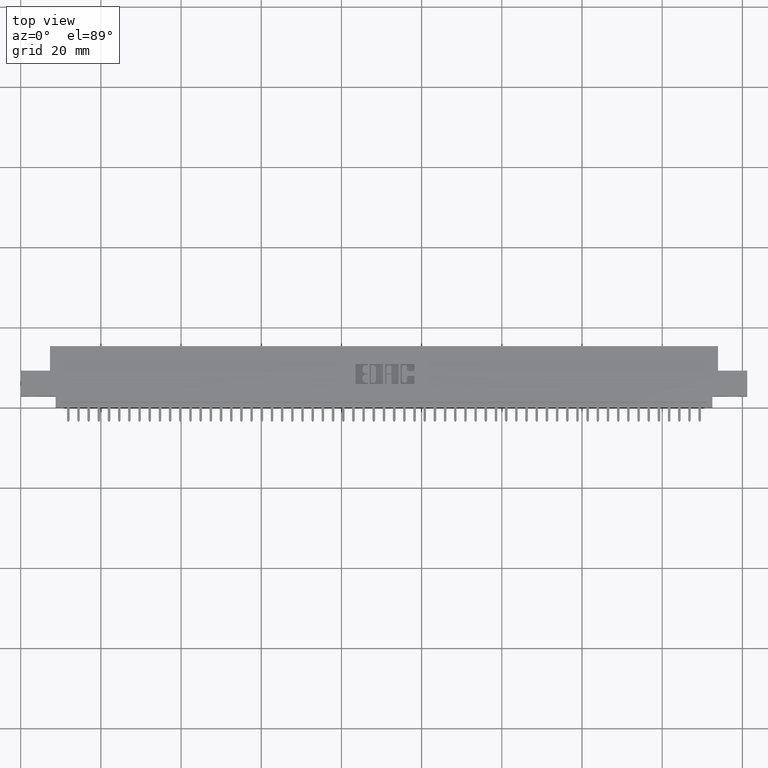
[diagram: clean part render]
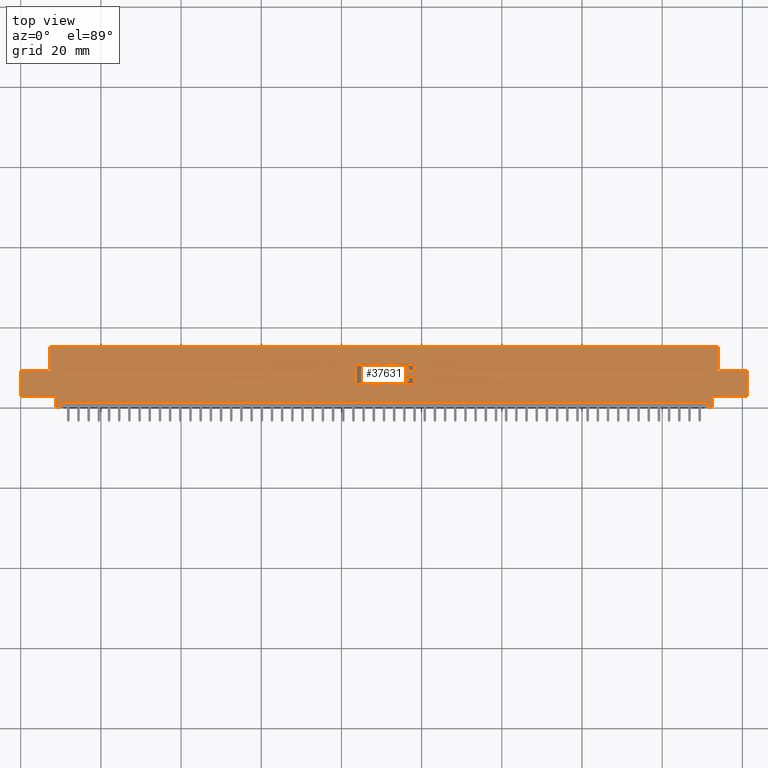
[diagram: same view with one face highlighted and labeled with its STEP entity id]
A machine part, top view. The second image highlights one B-rep face of the part: STEP entity #37631.
In plain terms, the highlighted planar face has unit normal (0, 0, -1).
Its self-contained STEP definition (entity closure, byte-faithful):
#78 = ORIENTED_EDGE ( 'NONE', *, *, #26168, .F. ) ;
#303 = DIRECTION ( 'NONE',  ( -0.0000000000000000000, 0.0000000000000000000, 1.000000000000000000 ) ) ;
#379 = LINE ( 'NONE', #14280, #18829 ) ;
#508 = CARTESIAN_POINT ( 'NONE',  ( 3.355726915352927900, 0.2867188862052000300, 0.0000000000000000000 ) ) ;
#580 = AXIS2_PLACEMENT_3D ( 'NONE', #1879, #27702, #5592 ) ;
#740 = ORIENTED_EDGE ( 'NONE', *, *, #15333, .F. ) ;
#816 = EDGE_CURVE ( 'NONE', #37017, #44814, #24150, .T. ) ;
#828 = CARTESIAN_POINT ( 'NONE',  ( 3.742464321382818600, 0.0000000000000000000, 0.0000000000000000000 ) ) ;
#999 = VERTEX_POINT ( 'NONE', #6831 ) ;
#1085 = DIRECTION ( 'NONE',  ( 0.0000000000000000000, 1.000000000000000000, -0.0000000000000000000 ) ) ;
#1120 = ORIENTED_EDGE ( 'NONE', *, *, #23024, .T. ) ;
#1122 = DIRECTION ( 'NONE',  ( -0.0000000000000000000, 0.0000000000000000000, 1.000000000000000000 ) ) ;
#1175 = CARTESIAN_POINT ( 'NONE',  ( 3.433270709963010000, 0.4133410318342096200, 0.0000000000000000000 ) ) ;
#1268 = VERTEX_POINT ( 'NONE', #4688 ) ;
#1270 = ORIENTED_EDGE ( 'NONE', *, *, #7730, .F. ) ;
#1279 = AXIS2_PLACEMENT_3D ( 'NONE', #11353, #37252, #15067 ) ;
#1352 = ORIENTED_EDGE ( 'NONE', *, *, #5031, .F. ) ;
#1365 = DIRECTION ( 'NONE',  ( -0.0000000000000000000, 0.0000000000000000000, 1.000000000000000000 ) ) ;
#1401 = ORIENTED_EDGE ( 'NONE', *, *, #8856, .F. ) ;
#1531 = ORIENTED_EDGE ( 'NONE', *, *, #31079, .T. ) ;
#1541 = CARTESIAN_POINT ( 'NONE',  ( 3.549095618367861700, 0.2366589681657894100, 0.0000000000000000000 ) ) ;
#1620 = VECTOR ( 'NONE', #34888, 39.37007874015748100 ) ;
#1682 = DIRECTION ( 'NONE',  ( -0.0000000000000000000, 0.0000000000000000000, 1.000000000000000000 ) ) ;
#1726 = ORIENTED_EDGE ( 'NONE', *, *, #19545, .F. ) ;
#1814 = DIRECTION ( 'NONE',  ( 1.000000000000000000, 0.0000000000000000000, 0.0000000000000000000 ) ) ;
#1876 = ORIENTED_EDGE ( 'NONE', *, *, #5296, .F. ) ;
#1879 = CARTESIAN_POINT ( 'NONE',  ( 3.400633606535351300, 0.4162857328953857300, 0.0000000000000000000 ) ) ;
#1980 = CARTESIAN_POINT ( 'NONE',  ( 3.711544960240806400, 0.4133410318342004600, 0.0000000000000000000 ) ) ;
#2086 = LINE ( 'NONE', #19592, #40266 ) ;
#2094 = LINE ( 'NONE', #11297, #20527 ) ;
#2187 = CARTESIAN_POINT ( 'NONE',  ( 3.407504575677997600, 0.2337142671046474100, 0.0000000000000000000 ) ) ;
#2379 = CARTESIAN_POINT ( 'NONE',  ( 3.387137060005125400, 0.4094147637527351700, 0.0000000000000000000 ) ) ;
#2498 = VERTEX_POINT ( 'NONE', #37237 ) ;
#2784 = LINE ( 'NONE', #42188, #1620 ) ;
#2856 = LINE ( 'NONE', #30662, #41044 ) ;
#3058 = CARTESIAN_POINT ( 'NONE',  ( 3.355726915352927900, 0.2719953808994898800, 0.0000000000000000000 ) ) ;
#3076 = CARTESIAN_POINT ( 'NONE',  ( 3.558911288571669400, 0.2366589681657894100, 0.0000000000000000000 ) ) ;
#3112 = DIRECTION ( 'NONE',  ( 1.000000000000000000, 0.0000000000000000000, 0.0000000000000000000 ) ) ;
#3125 = CARTESIAN_POINT ( 'NONE',  ( 3.558911288571669400, 0.0000000000000000000, 0.0000000000000000000 ) ) ;
#3250 = VERTEX_POINT ( 'NONE', #47776 ) ;
#3347 = EDGE_CURVE ( 'NONE', #20596, #3250, #2094, .T. ) ;
#3379 = CARTESIAN_POINT ( 'NONE',  ( 3.854362961706133900, 0.2366589681657894100, 0.0000000000000000000 ) ) ;
#3430 = AXIS2_PLACEMENT_3D ( 'NONE', #23197, #1122, #26937 ) ;
#3483 = VECTOR ( 'NONE', #28269, 39.37007874015748100 ) ;
#3644 = VERTEX_POINT ( 'NONE', #9032 ) ;
#3683 = ORIENTED_EDGE ( 'NONE', *, *, #20784, .F. ) ;
#3734 = ORIENTED_EDGE ( 'NONE', *, *, #43215, .F. ) ;
#3854 = DIRECTION ( 'NONE',  ( -0.0000000000000000000, 0.0000000000000000000, 1.000000000000000000 ) ) ;
#3928 = VERTEX_POINT ( 'NONE', #6774 ) ;
#3977 = EDGE_CURVE ( 'NONE', #10655, #47334, #15869, .T. ) ;
#3991 = AXIS2_PLACEMENT_3D ( 'NONE', #1175, #26988, #4890 ) ;
#4099 = CARTESIAN_POINT ( 'NONE',  ( 3.864178631909940300, 0.2965345564089699200, 0.0000000000000000000 ) ) ;
#4191 = ORIENTED_EDGE ( 'NONE', *, *, #27863, .F. ) ;
#4297 = CARTESIAN_POINT ( 'NONE',  ( 3.599646319917450200, 0.3083133606535450300, 0.0000000000000000000 ) ) ;
#4463 = CARTESIAN_POINT ( 'NONE',  ( 7.135000000000000700, 0.1100000000000000000, 8.737854911916364900E-016 ) ) ;
#4523 = CIRCLE ( 'NONE', #15769, 0.009815670203805798900 ) ;
#4543 = DIRECTION ( 'NONE',  ( -0.0000000000000000000, 0.0000000000000000000, 1.000000000000000000 ) ) ;
#4564 = EDGE_CURVE ( 'NONE', #15392, #42850, #47139, .T. ) ;
#4606 = VERTEX_POINT ( 'NONE', #40007 ) ;
#4615 = VERTEX_POINT ( 'NONE', #25249 ) ;
#4641 = LINE ( 'NONE', #6166, #3483 ) ;
#4668 = VERTEX_POINT ( 'NONE', #21847 ) ;
#4688 = CARTESIAN_POINT ( 'NONE',  ( 3.642344485303985000, 0.3083133606535429200, 0.0000000000000000000 ) ) ;
#4709 = EDGE_LOOP ( 'NONE', ( #6003, #7174, #30288, #31470, #37255, #39573, #1401, #21010, #3734, #23325, #24489, #35549, #7223, #21609, #15284, #44857 ) ) ;
#4806 = VECTOR ( 'NONE', #36114, 39.37007874015748100 ) ;
#4812 = VERTEX_POINT ( 'NONE', #4099 ) ;
#4826 = EDGE_CURVE ( 'NONE', #41075, #42758, #25624, .T. ) ;
#4890 = DIRECTION ( 'NONE',  ( 1.000000000000000000, 0.0000000000000000000, 0.0000000000000000000 ) ) ;
#4942 = EDGE_CURVE ( 'NONE', #18005, #45424, #29686, .T. ) ;
#4972 = VERTEX_POINT ( 'NONE', #45804 ) ;
#5031 = EDGE_CURVE ( 'NONE', #45140, #15392, #16329, .T. ) ;
#5159 = DIRECTION ( 'NONE',  ( -1.000000000000000000, 0.0000000000000000000, 0.0000000000000000000 ) ) ;
#5245 = AXIS2_PLACEMENT_3D ( 'NONE', #28583, #6465, #32313 ) ;
#5265 = DIRECTION ( 'NONE',  ( 1.000000000000000000, 0.0000000000000000000, 0.0000000000000000000 ) ) ;
#5296 = EDGE_CURVE ( 'NONE', #44254, #22761, #25575, .T. ) ;
#5352 = CARTESIAN_POINT ( 'NONE',  ( 3.423455039759169000, 0.0000000000000000000, 0.0000000000000000000 ) ) ;
#5466 = CARTESIAN_POINT ( 'NONE',  ( 0.0000000000000000000, 0.1100000000000000000, 0.0000000000000000000 ) ) ;
#5582 = EDGE_CURVE ( 'NONE', #40475, #29562, #23776, .T. ) ;
#5592 = DIRECTION ( 'NONE',  ( 1.000000000000000000, 0.0000000000000000000, 0.0000000000000000000 ) ) ;
#5723 = LINE ( 'NONE', #10793, #22998 ) ;
#5750 = FACE_BOUND ( 'NONE', #29840, .T. ) ;
#5784 = VERTEX_POINT ( 'NONE', #28063 ) ;
#5805 = VERTEX_POINT ( 'NONE', #6116 ) ;
#5819 = VERTEX_POINT ( 'NONE', #28379 ) ;
#5843 = DIRECTION ( 'NONE',  ( -0.0000000000000000000, -1.000000000000000000, -0.0000000000000000000 ) ) ;
#5890 = ORIENTED_EDGE ( 'NONE', *, *, #6672, .F. ) ;
#5974 = LINE ( 'NONE', #46993, #4806 ) ;
#5976 = CARTESIAN_POINT ( 'NONE',  ( 3.864178631909972200, 0.4133410318341942900, 0.0000000000000000000 ) ) ;
#5977 = AXIS2_PLACEMENT_3D ( 'NONE', #15920, #41841, #19602 ) ;
#6003 = ORIENTED_EDGE ( 'NONE', *, *, #23820, .T. ) ;
#6024 = DIRECTION ( 'NONE',  ( -1.000000000000000000, -0.0000000000000000000, -0.0000000000000000000 ) ) ;
#6048 = AXIS2_PLACEMENT_3D ( 'NONE', #35389, #13196, #39093 ) ;
#6071 = CARTESIAN_POINT ( 'NONE',  ( 3.585904381632127400, 0.4231567020380060400, 0.0000000000000000000 ) ) ;
#6116 = CARTESIAN_POINT ( 'NONE',  ( 6.742500000000000600, 0.0000000000000000000, 0.0000000000000000000 ) ) ;
#6131 = DIRECTION ( 'NONE',  ( -0.0000000000000000000, 0.0000000000000000000, 1.000000000000000000 ) ) ;
#6156 = VERTEX_POINT ( 'NONE', #34529 ) ;
#6166 = CARTESIAN_POINT ( 'NONE',  ( 7.135000000000000700, 0.3599999999999999900, 0.0000000000000000000 ) ) ;
#6292 = CARTESIAN_POINT ( 'NONE',  ( 3.286526440416115400, 0.0000000000000000000, 0.0000000000000000000 ) ) ;
#6320 = EDGE_CURVE ( 'NONE', #38957, #4606, #21470, .T. ) ;
#6322 = VERTEX_POINT ( 'NONE', #14982 ) ;
#6386 = CARTESIAN_POINT ( 'NONE',  ( 3.742464321382818600, 0.2668421540424524800, 0.0000000000000000000 ) ) ;
#6421 = CARTESIAN_POINT ( 'NONE',  ( 3.387137060005084100, 0.3318709691426833300, 0.0000000000000000000 ) ) ;
#6465 = DIRECTION ( 'NONE',  ( -0.0000000000000000000, 0.0000000000000000000, 1.000000000000000000 ) ) ;
#6566 = ORIENTED_EDGE ( 'NONE', *, *, #4564, .F. ) ;
#6601 = CIRCLE ( 'NONE', #19295, 0.009815670203806891800 ) ;
#6657 = ORIENTED_EDGE ( 'NONE', *, *, #30507, .F. ) ;
#6672 = EDGE_CURVE ( 'NONE', #17732, #4972, #15093, .T. ) ;
#6705 = VERTEX_POINT ( 'NONE', #6421 ) ;
#6774 = CARTESIAN_POINT ( 'NONE',  ( 6.847499999999999300, 0.3599999999999999900, 0.0000000000000000000 ) ) ;
#6831 = CARTESIAN_POINT ( 'NONE',  ( 3.549095618367896300, 0.4231567020380505000, 0.0000000000000000000 ) ) ;
#6880 = ORIENTED_EDGE ( 'NONE', *, *, #34742, .T. ) ;
#6938 = VERTEX_POINT ( 'NONE', #33406 ) ;
#6993 = DIRECTION ( 'NONE',  ( -0.0000000000000000000, 0.0000000000000000000, 1.000000000000000000 ) ) ;
#7015 = EDGE_CURVE ( 'NONE', #10974, #26153, #9860, .T. ) ;
#7019 = VERTEX_POINT ( 'NONE', #33869 ) ;
#7094 = DIRECTION ( 'NONE',  ( -0.0000000000000000000, 0.0000000000000000000, 1.000000000000000000 ) ) ;
#7097 = EDGE_LOOP ( 'NONE', ( #6657, #47188, #18737, #19891, #12413, #32110, #46619, #740 ) ) ;
#7101 = DIRECTION ( 'NONE',  ( 1.000000000000000000, 0.0000000000000000000, 0.0000000000000000000 ) ) ;
#7135 = ORIENTED_EDGE ( 'NONE', *, *, #15326, .F. ) ;
#7174 = ORIENTED_EDGE ( 'NONE', *, *, #46507, .F. ) ;
#7223 = ORIENTED_EDGE ( 'NONE', *, *, #8636, .T. ) ;
#7367 = VECTOR ( 'NONE', #42238, 39.37007874015748100 ) ;
#7402 = ORIENTED_EDGE ( 'NONE', *, *, #42495, .F. ) ;
#7460 = AXIS2_PLACEMENT_3D ( 'NONE', #17288, #43228, #21009 ) ;
#7507 = LINE ( 'NONE', #45101, #25976 ) ;
#7524 = EDGE_CURVE ( 'NONE', #29420, #6705, #8690, .T. ) ;
#7575 = DIRECTION ( 'NONE',  ( -0.0000000000000000000, 0.0000000000000000000, 1.000000000000000000 ) ) ;
#7631 = ORIENTED_EDGE ( 'NONE', *, *, #20177, .F. ) ;
#7727 = DIRECTION ( 'NONE',  ( -0.0000000000000000000, 0.0000000000000000000, 1.000000000000000000 ) ) ;
#7730 = EDGE_CURVE ( 'NONE', #5819, #5784, #27711, .T. ) ;
#7739 = EDGE_CURVE ( 'NONE', #19037, #3250, #47471, .T. ) ;
#7787 = CARTESIAN_POINT ( 'NONE',  ( 7.135000000000000700, 0.3599999999999999900, 0.0000000000000000000 ) ) ;
#7983 = CARTESIAN_POINT ( 'NONE',  ( 0.2874999999999999800, 0.3599999999999999900, 0.0000000000000000000 ) ) ;
#7996 = VECTOR ( 'NONE', #38728, 39.37007874015748100 ) ;
#8007 = DIRECTION ( 'NONE',  ( 1.000000000000000000, 0.0000000000000000000, 0.0000000000000000000 ) ) ;
#8111 = CARTESIAN_POINT ( 'NONE',  ( 3.387137060005109400, 0.2719953808994898800, 0.0000000000000000000 ) ) ;
#8162 = DIRECTION ( 'NONE',  ( -1.000000000000000000, 0.0000000000000000000, 0.0000000000000000000 ) ) ;
#8221 = LINE ( 'NONE', #26649, #35407 ) ;
#8232 = ORIENTED_EDGE ( 'NONE', *, *, #26172, .F. ) ;
#8263 = CARTESIAN_POINT ( 'NONE',  ( 3.794978156973178900, 0.2965345564089681400, 0.0000000000000000000 ) ) ;
#8286 = EDGE_CURVE ( 'NONE', #41550, #10974, #5723, .T. ) ;
#8479 = CARTESIAN_POINT ( 'NONE',  ( 3.642344485303985000, 0.2366589681657873000, 0.0000000000000000000 ) ) ;
#8636 = EDGE_CURVE ( 'NONE', #47317, #19152, #22407, .T. ) ;
#8690 = CIRCLE ( 'NONE', #26050, 0.03141014465217440600 ) ;
#8743 = VERTEX_POINT ( 'NONE', #24449 ) ;
#8785 = LINE ( 'NONE', #42705, #27246 ) ;
#8784 = CARTESIAN_POINT ( 'NONE',  ( -0.0000000000000000000, 0.2268432979619826600, 0.0000000000000000000 ) ) ;
#8856 = EDGE_CURVE ( 'NONE', #42758, #13107, #17163, .T. ) ;
#8925 = AXIS2_PLACEMENT_3D ( 'NONE', #41199, #18973, #44936 ) ;
#9032 = CARTESIAN_POINT ( 'NONE',  ( 3.400633606415388600, 0.3181290308573562800, 0.0000000000000000000 ) ) ;
#9057 = DIRECTION ( 'NONE',  ( 0.0000000000000000000, -1.000000000000000000, 0.0000000000000000000 ) ) ;
#9108 = VECTOR ( 'NONE', #25743, 39.37007874015748100 ) ;
#9167 = CARTESIAN_POINT ( 'NONE',  ( 3.864178631909940300, 0.2366589681657824400, 0.0000000000000000000 ) ) ;
#9172 = ORIENTED_EDGE ( 'NONE', *, *, #28498, .T. ) ;
#9381 = VECTOR ( 'NONE', #24949, 39.37007874015748100 ) ;
#9416 = ORIENTED_EDGE ( 'NONE', *, *, #11287, .F. ) ;
#9558 = AXIS2_PLACEMENT_3D ( 'NONE', #23442, #1365, #27173 ) ;
#9768 = ORIENTED_EDGE ( 'NONE', *, *, #5582, .F. ) ;
#9860 = CIRCLE ( 'NONE', #19502, 0.009815670203803066700 ) ;
#9869 = VECTOR ( 'NONE', #5159, 39.37007874015748100 ) ;
#9886 = EDGE_CURVE ( 'NONE', #19037, #26102, #26677, .T. ) ;
#9887 = AXIS2_PLACEMENT_3D ( 'NONE', #19038, #44993, #22748 ) ;
#9903 = ORIENTED_EDGE ( 'NONE', *, *, #6320, .F. ) ;
#9940 = CARTESIAN_POINT ( 'NONE',  ( 3.794978156973178900, 0.2668421540424524800, 0.0000000000000000000 ) ) ;
#10231 = DIRECTION ( 'NONE',  ( -1.000000000000000000, 0.0000000000000000000, 0.0000000000000000000 ) ) ;
#10288 = CARTESIAN_POINT ( 'NONE',  ( -0.0000000000000000000, 0.3181290308573562800, 0.0000000000000000000 ) ) ;
#10524 = LINE ( 'NONE', #21211, #9381 ) ;
#10538 = DIRECTION ( 'NONE',  ( 0.0000000000000000000, 1.000000000000000000, -0.0000000000000000000 ) ) ;
#10655 = VERTEX_POINT ( 'NONE', #42070 ) ;
#10755 = AXIS2_PLACEMENT_3D ( 'NONE', #23765, #1682, #27509 ) ;
#10760 = EDGE_CURVE ( 'NONE', #3928, #44186, #4641, .T. ) ;
#10787 = DIRECTION ( 'NONE',  ( 0.0000000000000000000, 1.000000000000000000, -0.0000000000000000000 ) ) ;
#10793 = CARTESIAN_POINT ( 'NONE',  ( -1.123269580619305600E-014, 0.3181290308572210000, 0.0000000000000000000 ) ) ;
#10919 = LINE ( 'NONE', #35317, #19543 ) ;
#10974 = VERTEX_POINT ( 'NONE', #33794 ) ;
#11099 = AXIS2_PLACEMENT_3D ( 'NONE', #3379, #29222, #7101 ) ;
#11170 = VECTOR ( 'NONE', #34306, 39.37007874015748100 ) ;
#11267 = VERTEX_POINT ( 'NONE', #20446 ) ;
#11287 = EDGE_CURVE ( 'NONE', #40105, #36487, #21888, .T. ) ;
#11288 = CARTESIAN_POINT ( 'NONE',  ( 3.387137060005084100, 0.3181290308573562800, 0.0000000000000000000 ) ) ;
#11297 = CARTESIAN_POINT ( 'NONE',  ( -2.860952991545795400E-014, 0.2405852362469053100, 0.0000000000000000000 ) ) ;
#11353 = CARTESIAN_POINT ( 'NONE',  ( 3.549095618367827900, 0.4133410318342094500, 0.0000000000000000000 ) ) ;
#11445 = EDGE_CURVE ( 'NONE', #30815, #3644, #14954, .T. ) ;
#11806 = DIRECTION ( 'NONE',  ( 1.000000000000000000, 0.0000000000000000000, 0.0000000000000000000 ) ) ;
#11873 = EDGE_CURVE ( 'NONE', #4615, #35461, #16060, .T. ) ;
#11978 = CARTESIAN_POINT ( 'NONE',  ( 3.854362961706166800, 0.3539562271012330300, 0.0000000000000000000 ) ) ;
#12237 = ORIENTED_EDGE ( 'NONE', *, *, #37737, .F. ) ;
#12413 = ORIENTED_EDGE ( 'NONE', *, *, #33440, .F. ) ;
#12503 = CARTESIAN_POINT ( 'NONE',  ( 0.0000000000000000000, 0.5999999999999999800, 0.0000000000000000000 ) ) ;
#12849 = CARTESIAN_POINT ( 'NONE',  ( 0.0000000000000000000, 0.0000000000000000000, 0.0000000000000000000 ) ) ;
#12900 = LINE ( 'NONE', #8784, #31440 ) ;
#13107 = VERTEX_POINT ( 'NONE', #21494 ) ;
#13123 = EDGE_CURVE ( 'NONE', #35461, #11267, #18877, .T. ) ;
#13196 = DIRECTION ( 'NONE',  ( -0.0000000000000000000, 0.0000000000000000000, 1.000000000000000000 ) ) ;
#13216 = AXIS2_PLACEMENT_3D ( 'NONE', #26641, #4543, #30402 ) ;
#13278 = AXIS2_PLACEMENT_3D ( 'NONE', #20679, #46648, #24401 ) ;
#13366 = EDGE_CURVE ( 'NONE', #6156, #40105, #18269, .T. ) ;
#13382 = ORIENTED_EDGE ( 'NONE', *, *, #47863, .T. ) ;
#13389 = ORIENTED_EDGE ( 'NONE', *, *, #3977, .T. ) ;
#13695 = CARTESIAN_POINT ( 'NONE',  ( -0.0000000000000000000, 0.4094147637527351700, 0.0000000000000000000 ) ) ;
#13753 = DIRECTION ( 'NONE',  ( -1.000000000000000000, 0.0000000000000000000, 0.0000000000000000000 ) ) ;
#13974 = ORIENTED_EDGE ( 'NONE', *, *, #11445, .F. ) ;
#14280 = CARTESIAN_POINT ( 'NONE',  ( 3.589830649713647000, 0.0000000000000000000, 0.0000000000000000000 ) ) ;
#14364 = DIRECTION ( 'NONE',  ( 0.0000000000000000000, -1.000000000000000000, 0.0000000000000000000 ) ) ;
#14479 = VERTEX_POINT ( 'NONE', #29685 ) ;
#14559 = CIRCLE ( 'NONE', #23451, 0.006870969142663458500 ) ;
#14678 = CARTESIAN_POINT ( 'NONE',  ( 3.407504575677973600, 0.3250000000000198300, 0.0000000000000000000 ) ) ;
#14954 = LINE ( 'NONE', #10288, #33504 ) ;
#14982 = CARTESIAN_POINT ( 'NONE',  ( 6.792500000000000400, 0.0000000000000000000, 0.0000000000000000000 ) ) ;
#15013 = DIRECTION ( 'NONE',  ( -1.000000000000000000, -1.189163988687022500E-013, 0.0000000000000000000 ) ) ;
#15067 = DIRECTION ( 'NONE',  ( 1.000000000000000000, 0.0000000000000000000, 0.0000000000000000000 ) ) ;
#15093 = CIRCLE ( 'NONE', #25406, 0.009815670203795418300 ) ;
#15129 = ORIENTED_EDGE ( 'NONE', *, *, #44923, .T. ) ;
#15145 = AXIS2_PLACEMENT_3D ( 'NONE', #46135, #23904, #1814 ) ;
#15219 = AXIS2_PLACEMENT_3D ( 'NONE', #19043, #44996, #22751 ) ;
#15221 = DIRECTION ( 'NONE',  ( -0.0000000000000000000, 1.000000000000000000, -0.0000000000000000000 ) ) ;
#15284 = ORIENTED_EDGE ( 'NONE', *, *, #816, .F. ) ;
#15287 = VERTEX_POINT ( 'NONE', #30264 ) ;
#15326 = EDGE_CURVE ( 'NONE', #6938, #31433, #32017, .T. ) ;
#15333 = EDGE_CURVE ( 'NONE', #999, #46647, #40712, .T. ) ;
#15338 = CARTESIAN_POINT ( 'NONE',  ( 3.701729290037010700, 0.2268432979619841000, 0.0000000000000000000 ) ) ;
#15389 = CARTESIAN_POINT ( 'NONE',  ( 0.0000000000000000000, 0.2268432979619841000, 0.0000000000000000000 ) ) ;
#15392 = VERTEX_POINT ( 'NONE', #36441 ) ;
#15537 = FACE_BOUND ( 'NONE', #27633, .T. ) ;
#15678 = EDGE_CURVE ( 'NONE', #46647, #41819, #18689, .T. ) ;
#15690 = ORIENTED_EDGE ( 'NONE', *, *, #7524, .T. ) ;
#15710 = CARTESIAN_POINT ( 'NONE',  ( 3.738538053301299500, 0.4133410318342096200, 0.0000000000000000000 ) ) ;
#15769 = AXIS2_PLACEMENT_3D ( 'NONE', #16036, #41953, #19725 ) ;
#15869 = CIRCLE ( 'NONE', #17890, 0.02625691779517339700 ) ;
#15917 = DIRECTION ( 'NONE',  ( 1.000000000000000000, 0.0000000000000000000, 0.0000000000000000000 ) ) ;
#15920 = CARTESIAN_POINT ( 'NONE',  ( 3.296342110619938200, 0.4133410318342096200, 0.0000000000000000000 ) ) ;
#16005 = CARTESIAN_POINT ( 'NONE',  ( 0.0000000000000000000, 0.3063502266127570200, 0.0000000000000000000 ) ) ;
#16036 = CARTESIAN_POINT ( 'NONE',  ( 3.296342110619922200, 0.2366589681657894100, 0.0000000000000000000 ) ) ;
#16056 = PLANE ( 'NONE',  #21127 ) ;
#16060 = CIRCLE ( 'NONE', #34845, 0.009815670203806891800 ) ;
#16096 = EDGE_CURVE ( 'NONE', #41036, #41299, #19804, .T. ) ;
#16192 = DIRECTION ( 'NONE',  ( -1.000000000000000000, 0.0000000000000000000, -0.0000000000000000000 ) ) ;
#16288 = ORIENTED_EDGE ( 'NONE', *, *, #9886, .F. ) ;
#16329 = CIRCLE ( 'NONE', #15145, 0.006870969142648706400 ) ;
#16565 = CIRCLE ( 'NONE', #13216, 0.006870969142657995000 ) ;
#16586 = VECTOR ( 'NONE', #13753, 39.37007874015748100 ) ;
#16829 = DIRECTION ( 'NONE',  ( 0.0000000000000000000, -1.000000000000000000, 0.0000000000000000000 ) ) ;
#16855 = VERTEX_POINT ( 'NONE', #34210 ) ;
#16875 = LINE ( 'NONE', #26243, #26727 ) ;
#16952 = CARTESIAN_POINT ( 'NONE',  ( 0.3924999999999996800, 0.05000000000000000300, 0.0000000000000000000 ) ) ;
#17163 = LINE ( 'NONE', #17821, #35744 ) ;
#17288 = CARTESIAN_POINT ( 'NONE',  ( 3.400633606535335300, 0.2337142671046474100, 0.0000000000000000000 ) ) ;
#17380 = CARTESIAN_POINT ( 'NONE',  ( 0.3924999999999996800, 0.05000000000000000300, 0.0000000000000000000 ) ) ;
#17398 = ORIENTED_EDGE ( 'NONE', *, *, #16096, .F. ) ;
#17406 = VERTEX_POINT ( 'NONE', #26060 ) ;
#17732 = VERTEX_POINT ( 'NONE', #1980 ) ;
#17821 = CARTESIAN_POINT ( 'NONE',  ( 0.0000000000000000000, 0.5999999999999999800, 0.0000000000000000000 ) ) ;
#17890 = AXIS2_PLACEMENT_3D ( 'NONE', #29218, #7094, #32947 ) ;
#18005 = VERTEX_POINT ( 'NONE', #29418 ) ;
#18203 = DIRECTION ( 'NONE',  ( -0.0000000000000000000, 0.0000000000000000000, 1.000000000000000000 ) ) ;
#18226 = CIRCLE ( 'NONE', #8925, 0.009815670203806891800 ) ;
#18269 = LINE ( 'NONE', #27316, #7367 ) ;
#18278 = CARTESIAN_POINT ( 'NONE',  ( 3.355726915352909700, 0.0000000000000000000, 0.0000000000000000000 ) ) ;
#18329 = CARTESIAN_POINT ( 'NONE',  ( 0.3924999999999996800, 0.05000000000000000300, 0.0000000000000000000 ) ) ;
#18331 = CARTESIAN_POINT ( 'NONE',  ( 0.3924999999999996800, 0.0000000000000000000, 0.0000000000000000000 ) ) ;
#18394 = ORIENTED_EDGE ( 'NONE', *, *, #27495, .T. ) ;
#18482 = ORIENTED_EDGE ( 'NONE', *, *, #8286, .T. ) ;
#18671 = CARTESIAN_POINT ( 'NONE',  ( 3.632528815100188000, 0.3181290308573492800, 0.0000000000000000000 ) ) ;
#18689 = CIRCLE ( 'NONE', #3991, 0.009815670203840767500 ) ;
#18737 = ORIENTED_EDGE ( 'NONE', *, *, #11873, .F. ) ;
#18829 = VECTOR ( 'NONE', #43754, 39.37007874015748100 ) ;
#18869 = AXIS2_PLACEMENT_3D ( 'NONE', #22392, #303, #26139 ) ;
#18877 = LINE ( 'NONE', #3125, #37443 ) ;
#18911 = VERTEX_POINT ( 'NONE', #46594 ) ;
#18973 = DIRECTION ( 'NONE',  ( -0.0000000000000000000, 0.0000000000000000000, 1.000000000000000000 ) ) ;
#19029 = CIRCLE ( 'NONE', #5245, 0.03141014465215583000 ) ;
#19037 = VERTEX_POINT ( 'NONE', #3058 ) ;
#19038 = CARTESIAN_POINT ( 'NONE',  ( 3.768721239177998500, 0.2668421540424524800, 0.0000000000000000000 ) ) ;
#19043 = CARTESIAN_POINT ( 'NONE',  ( 3.804793827176977700, 0.3637718973050446700, 0.0000000000000000000 ) ) ;
#19121 = EDGE_CURVE ( 'NONE', #41860, #4812, #22962, .T. ) ;
#19139 = DIRECTION ( 'NONE',  ( 0.0000000000000000000, 1.000000000000000000, -0.0000000000000000000 ) ) ;
#19152 = VERTEX_POINT ( 'NONE', #18331 ) ;
#19198 = ORIENTED_EDGE ( 'NONE', *, *, #13366, .F. ) ;
#19295 = AXIS2_PLACEMENT_3D ( 'NONE', #29851, #7727, #33586 ) ;
#19361 = EDGE_CURVE ( 'NONE', #42850, #29591, #40946, .T. ) ;
#19396 = DIRECTION ( 'NONE',  ( 1.000000000000000000, 0.0000000000000000000, 0.0000000000000000000 ) ) ;
#19502 = AXIS2_PLACEMENT_3D ( 'NONE', #4297, #30128, #8007 ) ;
#19543 = VECTOR ( 'NONE', #16829, 39.37007874015748100 ) ;
#19545 = EDGE_CURVE ( 'NONE', #37780, #17406, #25263, .T. ) ;
#19592 = CARTESIAN_POINT ( 'NONE',  ( 6.742500000000000600, 0.05000000000000000300, 0.0000000000000000000 ) ) ;
#19602 = DIRECTION ( 'NONE',  ( 1.000000000000000000, 0.0000000000000000000, 0.0000000000000000000 ) ) ;
#19725 = DIRECTION ( 'NONE',  ( 1.000000000000000000, 0.0000000000000000000, 0.0000000000000000000 ) ) ;
#19740 = ORIENTED_EDGE ( 'NONE', *, *, #3347, .F. ) ;
#19752 = ORIENTED_EDGE ( 'NONE', *, *, #46701, .F. ) ;
#19804 = CIRCLE ( 'NONE', #20341, 0.009815670203805252500 ) ;
#19891 = ORIENTED_EDGE ( 'NONE', *, *, #44998, .F. ) ;
#20137 = AXIS2_PLACEMENT_3D ( 'NONE', #8111, #33971, #11806 ) ;
#20177 = EDGE_CURVE ( 'NONE', #4606, #38971, #26437, .T. ) ;
#20341 = AXIS2_PLACEMENT_3D ( 'NONE', #40430, #18203, #44156 ) ;
#20446 = CARTESIAN_POINT ( 'NONE',  ( 3.558911288571669400, 0.4133410318342096200, 0.0000000000000000000 ) ) ;
#20462 = VERTEX_POINT ( 'NONE', #41431 ) ;
#20527 = VECTOR ( 'NONE', #15013, 39.37007874015748100 ) ;
#20596 = VERTEX_POINT ( 'NONE', #45946 ) ;
#20679 = CARTESIAN_POINT ( 'NONE',  ( 3.804793827176966600, 0.2965345564089690300, 0.0000000000000000000 ) ) ;
#20784 = EDGE_CURVE ( 'NONE', #22732, #18911, #46691, .T. ) ;
#20891 = DIRECTION ( 'NONE',  ( -0.0000000000000000000, 0.0000000000000000000, 1.000000000000000000 ) ) ;
#20954 = VECTOR ( 'NONE', #41927, 39.37007874015748100 ) ;
#20986 = LINE ( 'NONE', #33701, #29723 ) ;
#21009 = DIRECTION ( 'NONE',  ( 1.000000000000000000, 0.0000000000000000000, 0.0000000000000000000 ) ) ;
#21010 = ORIENTED_EDGE ( 'NONE', *, *, #4826, .F. ) ;
#21094 = DIRECTION ( 'NONE',  ( -0.0000000000000000000, -1.000000000000000000, -0.0000000000000000000 ) ) ;
#21127 = AXIS2_PLACEMENT_3D ( 'NONE', #12503, #38395, #16192 ) ;
#21211 = CARTESIAN_POINT ( 'NONE',  ( 0.0000000000000000000, 0.3599999999999999900, 0.0000000000000000000 ) ) ;
#21224 = CARTESIAN_POINT ( 'NONE',  ( 3.585904381632127400, 0.4133410318342096200, 0.0000000000000000000 ) ) ;
#21470 = CIRCLE ( 'NONE', #18869, 0.009815670203840221000 ) ;
#21484 = CARTESIAN_POINT ( 'NONE',  ( 0.2874999999999999800, 0.5999999999999999800, 0.0000000000000000000 ) ) ;
#21494 = CARTESIAN_POINT ( 'NONE',  ( 6.847499999999999300, 0.5999999999999999800, 0.0000000000000000000 ) ) ;
#21526 = DIRECTION ( 'NONE',  ( 1.000000000000000000, 0.0000000000000000000, 0.0000000000000000000 ) ) ;
#21609 = ORIENTED_EDGE ( 'NONE', *, *, #47645, .F. ) ;
#21734 = LINE ( 'NONE', #6292, #40307 ) ;
#21847 = CARTESIAN_POINT ( 'NONE',  ( 3.738538053301265300, 0.2268432979619826600, 0.0000000000000000000 ) ) ;
#21886 = CARTESIAN_POINT ( 'NONE',  ( 3.728722383097458500, 0.2366589681657894100, 0.0000000000000000000 ) ) ;
#21888 = CIRCLE ( 'NONE', #6048, 0.006870969142662365600 ) ;
#22131 = DIRECTION ( 'NONE',  ( -0.0000000000000000000, 1.000000000000000000, -0.0000000000000000000 ) ) ;
#22392 = CARTESIAN_POINT ( 'NONE',  ( 3.854362961706131700, 0.4133410318342103900, 0.0000000000000000000 ) ) ;
#22407 = LINE ( 'NONE', #12849, #7996 ) ;
#22625 = VECTOR ( 'NONE', #22131, 39.37007874015748100 ) ;
#22732 = VERTEX_POINT ( 'NONE', #2379 ) ;
#22748 = DIRECTION ( 'NONE',  ( 1.000000000000000000, 0.0000000000000000000, 0.0000000000000000000 ) ) ;
#22751 = DIRECTION ( 'NONE',  ( 1.000000000000000000, 0.0000000000000000000, 0.0000000000000000000 ) ) ;
#22761 = VERTEX_POINT ( 'NONE', #9940 ) ;
#22962 = LINE ( 'NONE', #29230, #42713 ) ;
#22998 = VECTOR ( 'NONE', #33131, 39.37007874015748100 ) ;
#23024 = EDGE_CURVE ( 'NONE', #37780, #4972, #16875, .T. ) ;
#23057 = CARTESIAN_POINT ( 'NONE',  ( 0.3424999999999999700, 0.0000000000000000000, 0.0000000000000000000 ) ) ;
#23197 = CARTESIAN_POINT ( 'NONE',  ( 3.652160155507788300, 0.2366589681657873000, 0.0000000000000000000 ) ) ;
#23325 = ORIENTED_EDGE ( 'NONE', *, *, #30157, .T. ) ;
#23442 = CARTESIAN_POINT ( 'NONE',  ( 3.632528815100188000, 0.3083133606535522500, 0.0000000000000000000 ) ) ;
#23451 = AXIS2_PLACEMENT_3D ( 'NONE', #29705, #7575, #33439 ) ;
#23528 = CIRCLE ( 'NONE', #7460, 0.006870969142662365600 ) ;
#23663 = EDGE_CURVE ( 'NONE', #3928, #13107, #32524, .T. ) ;
#23715 = VERTEX_POINT ( 'NONE', #33346 ) ;
#23765 = CARTESIAN_POINT ( 'NONE',  ( 3.701729290037010700, 0.2366589681657803300, 0.0000000000000000000 ) ) ;
#23776 = CIRCLE ( 'NONE', #3430, 0.009815670203803066700 ) ;
#23820 = EDGE_CURVE ( 'NONE', #5805, #6322, #8221, .T. ) ;
#23904 = DIRECTION ( 'NONE',  ( -0.0000000000000000000, 0.0000000000000000000, 1.000000000000000000 ) ) ;
#24012 = LINE ( 'NONE', #26896, #32751 ) ;
#24139 = CARTESIAN_POINT ( 'NONE',  ( 0.0000000000000000000, 0.5999999999999999800, 0.0000000000000000000 ) ) ;
#24150 = LINE ( 'NONE', #16952, #42726 ) ;
#24309 = VERTEX_POINT ( 'NONE', #33291 ) ;
#24401 = DIRECTION ( 'NONE',  ( 1.000000000000000000, 0.0000000000000000000, 0.0000000000000000000 ) ) ;
#24436 = VECTOR ( 'NONE', #15221, 39.37007874015748100 ) ;
#24449 = CARTESIAN_POINT ( 'NONE',  ( 3.355726915352909700, 0.3780046191005192500, 0.0000000000000000000 ) ) ;
#24489 = ORIENTED_EDGE ( 'NONE', *, *, #33860, .F. ) ;
#24581 = CARTESIAN_POINT ( 'NONE',  ( 0.3424999999999999700, 0.1100000000000000000, 0.0000000000000000000 ) ) ;
#24674 = CARTESIAN_POINT ( 'NONE',  ( 3.652160155507786100, 0.2268432979619841000, 0.0000000000000000000 ) ) ;
#24693 = VERTEX_POINT ( 'NONE', #33607 ) ;
#24823 = CARTESIAN_POINT ( 'NONE',  ( 3.589830649713647000, 0.2337142671046474100, 0.0000000000000000000 ) ) ;
#24893 = AXIS2_PLACEMENT_3D ( 'NONE', #28234, #6131, #31984 ) ;
#24949 = DIRECTION ( 'NONE',  ( 1.000000000000000000, 0.0000000000000000000, 0.0000000000000000000 ) ) ;
#24960 = DIRECTION ( 'NONE',  ( 1.000000000000000000, 0.0000000000000000000, 0.0000000000000000000 ) ) ;
#25004 = CARTESIAN_POINT ( 'NONE',  ( 3.286526440416115400, 0.4133410318342096200, 0.0000000000000000000 ) ) ;
#25017 = ORIENTED_EDGE ( 'NONE', *, *, #19361, .F. ) ;
#25028 = EDGE_CURVE ( 'NONE', #5784, #41036, #27101, .T. ) ;
#25215 = DIRECTION ( 'NONE',  ( -0.0000000000000000000, 0.0000000000000000000, 1.000000000000000000 ) ) ;
#25249 = CARTESIAN_POINT ( 'NONE',  ( 3.549095618367861700, 0.2268432979619826600, 0.0000000000000000000 ) ) ;
#25263 = CIRCLE ( 'NONE', #30739, 0.009815670203796511200 ) ;
#25406 = AXIS2_PLACEMENT_3D ( 'NONE', #43124, #20891, #46874 ) ;
#25575 = LINE ( 'NONE', #29097, #36606 ) ;
#25579 = ORIENTED_EDGE ( 'NONE', *, *, #45824, .F. ) ;
#25624 = LINE ( 'NONE', #7983, #24436 ) ;
#25743 = DIRECTION ( 'NONE',  ( 0.0000000000000000000, 1.000000000000000000, -0.0000000000000000000 ) ) ;
#25966 = CARTESIAN_POINT ( 'NONE',  ( 3.387137060005125400, 0.3780046191005192500, 0.0000000000000000000 ) ) ;
#25976 = VECTOR ( 'NONE', #19139, 39.37007874015748100 ) ;
#26050 = AXIS2_PLACEMENT_3D ( 'NONE', #47459, #25215, #3112 ) ;
#26060 = CARTESIAN_POINT ( 'NONE',  ( 3.576088711428330800, 0.4133410318342096200, 0.0000000000000000000 ) ) ;
#26102 = VERTEX_POINT ( 'NONE', #508 ) ;
#26139 = DIRECTION ( 'NONE',  ( 1.000000000000000000, 0.0000000000000000000, 0.0000000000000000000 ) ) ;
#26142 = VERTEX_POINT ( 'NONE', #15338 ) ;
#26153 = VERTEX_POINT ( 'NONE', #30064 ) ;
#26168 = EDGE_CURVE ( 'NONE', #7019, #27691, #16565, .T. ) ;
#26172 = EDGE_CURVE ( 'NONE', #31919, #47334, #36291, .T. ) ;
#26188 = AXIS2_PLACEMENT_3D ( 'NONE', #15710, #41628, #19396 ) ;
#26233 = DIRECTION ( 'NONE',  ( -0.0000000000000000000, -1.000000000000000000, -0.0000000000000000000 ) ) ;
#26243 = CARTESIAN_POINT ( 'NONE',  ( -0.0000000000000000000, 0.4231567020380060400, 0.0000000000000000000 ) ) ;
#26437 = LINE ( 'NONE', #39488, #16586 ) ;
#26641 = CARTESIAN_POINT ( 'NONE',  ( 3.582959680570987300, 0.2337142671046474100, 0.0000000000000000000 ) ) ;
#26649 = CARTESIAN_POINT ( 'NONE',  ( 0.0000000000000000000, 0.0000000000000000000, 0.0000000000000000000 ) ) ;
#26677 = LINE ( 'NONE', #45855, #42913 ) ;
#26727 = VECTOR ( 'NONE', #44738, 39.37007874015748100 ) ;
#26800 = EDGE_CURVE ( 'NONE', #31433, #4668, #18226, .T. ) ;
#26835 = DIRECTION ( 'NONE',  ( 0.0000000000000000000, -1.000000000000000000, 0.0000000000000000000 ) ) ;
#26896 = CARTESIAN_POINT ( 'NONE',  ( 3.864178631909972200, 0.0000000000000000000, 0.0000000000000000000 ) ) ;
#26937 = DIRECTION ( 'NONE',  ( 1.000000000000000000, 0.0000000000000000000, 0.0000000000000000000 ) ) ;
#26979 = CARTESIAN_POINT ( 'NONE',  ( 0.2874999999999999800, 0.3599999999999999900, 0.0000000000000000000 ) ) ;
#26988 = DIRECTION ( 'NONE',  ( -0.0000000000000000000, 0.0000000000000000000, 1.000000000000000000 ) ) ;
#27034 = EDGE_CURVE ( 'NONE', #18911, #45140, #27486, .T. ) ;
#27101 = LINE ( 'NONE', #39220, #35830 ) ;
#27173 = DIRECTION ( 'NONE',  ( 1.000000000000000000, 0.0000000000000000000, 0.0000000000000000000 ) ) ;
#27246 = VECTOR ( 'NONE', #5843, 39.37007874015748100 ) ;
#27292 = ORIENTED_EDGE ( 'NONE', *, *, #19121, .F. ) ;
#27316 = CARTESIAN_POINT ( 'NONE',  ( -1.634053534411870200E-015, 0.2268432979619607000, 0.0000000000000000000 ) ) ;
#27371 = DIRECTION ( 'NONE',  ( -0.0000000000000000000, 0.0000000000000000000, 1.000000000000000000 ) ) ;
#27486 = CIRCLE ( 'NONE', #580, 0.006870969142648706400 ) ;
#27495 = EDGE_CURVE ( 'NONE', #1268, #41550, #30831, .T. ) ;
#27509 = DIRECTION ( 'NONE',  ( 1.000000000000000000, 0.0000000000000000000, 0.0000000000000000000 ) ) ;
#27633 = EDGE_LOOP ( 'NONE', ( #13382, #42927, #15690, #30193, #42377, #4191, #13974, #34829, #16288, #28458, #19740, #25579, #9416, #19198, #31415, #32569, #25017, #6566, #1352, #32011, #3683 ) ) ;
#27691 = VERTEX_POINT ( 'NONE', #24823 ) ;
#27702 = DIRECTION ( 'NONE',  ( -0.0000000000000000000, 0.0000000000000000000, 1.000000000000000000 ) ) ;
#27711 = CIRCLE ( 'NONE', #15219, 0.009815670203811809700 ) ;
#27783 = EDGE_CURVE ( 'NONE', #38221, #41860, #46451, .T. ) ;
#27863 = EDGE_CURVE ( 'NONE', #3644, #38681, #14559, .T. ) ;
#27866 = DIRECTION ( 'NONE',  ( -0.0000000000000000000, -1.000000000000000000, -0.0000000000000000000 ) ) ;
#27911 = LINE ( 'NONE', #24581, #35475 ) ;
#28063 = CARTESIAN_POINT ( 'NONE',  ( 3.804793827176977700, 0.3539562271012330900, 0.0000000000000000000 ) ) ;
#28234 = CARTESIAN_POINT ( 'NONE',  ( 3.854362961706153000, 0.2965345564089699200, 0.0000000000000000000 ) ) ;
#28269 = DIRECTION ( 'NONE',  ( 1.000000000000000000, -0.0000000000000000000, -0.0000000000000000000 ) ) ;
#28379 = CARTESIAN_POINT ( 'NONE',  ( 3.794978156973166000, 0.3637718973050446700, 0.0000000000000000000 ) ) ;
#28393 = DIRECTION ( 'NONE',  ( 0.0000000000000000000, -1.000000000000000000, 0.0000000000000000000 ) ) ;
#28458 = ORIENTED_EDGE ( 'NONE', *, *, #7739, .T. ) ;
#28471 = ORIENTED_EDGE ( 'NONE', *, *, #27783, .F. ) ;
#28498 = EDGE_CURVE ( 'NONE', #26142, #29562, #34758, .T. ) ;
#28583 = CARTESIAN_POINT ( 'NONE',  ( 3.387137060005084100, 0.2867188862052000300, 0.0000000000000000000 ) ) ;
#28724 = DIRECTION ( 'NONE',  ( 1.000000000000000000, 0.0000000000000000000, 0.0000000000000000000 ) ) ;
#28800 = EDGE_CURVE ( 'NONE', #45424, #44254, #31841, .T. ) ;
#29008 = VECTOR ( 'NONE', #21094, 39.37007874015748100 ) ;
#29097 = CARTESIAN_POINT ( 'NONE',  ( 3.794978156973178900, 0.0000000000000000000, 0.0000000000000000000 ) ) ;
#29118 = CARTESIAN_POINT ( 'NONE',  ( 3.400633606535310400, 0.3250000000000198300, 0.0000000000000000000 ) ) ;
#29153 = EDGE_CURVE ( 'NONE', #31919, #22761, #45157, .T. ) ;
#29218 = CARTESIAN_POINT ( 'NONE',  ( 3.768721239177991800, 0.3831578459575290500, 0.0000000000000000000 ) ) ;
#29222 = DIRECTION ( 'NONE',  ( -0.0000000000000000000, 0.0000000000000000000, 1.000000000000000000 ) ) ;
#29230 = CARTESIAN_POINT ( 'NONE',  ( 3.864178631909940300, 0.0000000000000000000, 0.0000000000000000000 ) ) ;
#29418 = CARTESIAN_POINT ( 'NONE',  ( 3.854362961706156600, 0.3063502266127570200, 0.0000000000000000000 ) ) ;
#29420 = VERTEX_POINT ( 'NONE', #31537 ) ;
#29557 = LINE ( 'NONE', #31019, #9869 ) ;
#29562 = VERTEX_POINT ( 'NONE', #24674 ) ;
#29563 = CIRCLE ( 'NONE', #40688, 0.03141014465221592800 ) ;
#29591 = VERTEX_POINT ( 'NONE', #25004 ) ;
#29685 = CARTESIAN_POINT ( 'NONE',  ( 0.0000000000000000000, 0.1100000000000000000, 0.0000000000000000000 ) ) ;
#29686 = LINE ( 'NONE', #16005, #20954 ) ;
#29705 = CARTESIAN_POINT ( 'NONE',  ( 3.400633606535310400, 0.3250000000000198300, 0.0000000000000000000 ) ) ;
#29711 = DIRECTION ( 'NONE',  ( 1.000000000000000000, 0.0000000000000000000, 0.0000000000000000000 ) ) ;
#29723 = VECTOR ( 'NONE', #26233, 39.37007874015748100 ) ;
#29840 = EDGE_LOOP ( 'NONE', ( #17398, #37124, #1270, #12237, #13389, #8232, #30200, #1876, #41224, #33696, #34842, #27292, #28471, #19752, #33150, #7135, #35959, #7631, #9903, #39427 ) ) ;
#29851 = CARTESIAN_POINT ( 'NONE',  ( 3.433270709962976200, 0.2366589681657894100, 0.0000000000000000000 ) ) ;
#30064 = CARTESIAN_POINT ( 'NONE',  ( 3.589830649713647000, 0.3083133606535450300, 0.0000000000000000000 ) ) ;
#30127 = ORIENTED_EDGE ( 'NONE', *, *, #7015, .T. ) ;
#30128 = DIRECTION ( 'NONE',  ( -0.0000000000000000000, 0.0000000000000000000, 1.000000000000000000 ) ) ;
#30157 = EDGE_CURVE ( 'NONE', #23715, #14479, #31714, .T. ) ;
#30171 = LINE ( 'NONE', #17380, #29008 ) ;
#30193 = ORIENTED_EDGE ( 'NONE', *, *, #35696, .F. ) ;
#30200 = ORIENTED_EDGE ( 'NONE', *, *, #29153, .T. ) ;
#30264 = CARTESIAN_POINT ( 'NONE',  ( 0.3424999999999999700, 0.1100000000000000000, 0.0000000000000000000 ) ) ;
#30288 = ORIENTED_EDGE ( 'NONE', *, *, #31599, .F. ) ;
#30402 = DIRECTION ( 'NONE',  ( 1.000000000000000000, 0.0000000000000000000, 0.0000000000000000000 ) ) ;
#30411 = DIRECTION ( 'NONE',  ( 1.000000000000000000, 0.0000000000000000000, 0.0000000000000000000 ) ) ;
#30444 = EDGE_CURVE ( 'NONE', #29420, #8743, #38618, .T. ) ;
#30507 = EDGE_CURVE ( 'NONE', #11267, #999, #36309, .T. ) ;
#30558 = CARTESIAN_POINT ( 'NONE',  ( 3.742464321382818600, 0.3831578459575290500, 0.0000000000000000000 ) ) ;
#30577 = CARTESIAN_POINT ( 'NONE',  ( 0.0000000000000000000, 0.4231567020380505000, 0.0000000000000000000 ) ) ;
#30662 = CARTESIAN_POINT ( 'NONE',  ( -0.0000000000000000000, 0.2268432979619826600, 0.0000000000000000000 ) ) ;
#30739 = AXIS2_PLACEMENT_3D ( 'NONE', #21224, #47198, #24960 ) ;
#30815 = VERTEX_POINT ( 'NONE', #11288 ) ;
#30831 = CIRCLE ( 'NONE', #9558, 0.009815670203797057700 ) ;
#30930 = DIRECTION ( 'NONE',  ( 1.000000000000000000, 0.0000000000000000000, 0.0000000000000000000 ) ) ;
#31019 = CARTESIAN_POINT ( 'NONE',  ( 0.0000000000000000000, 0.3318709691426833300, 0.0000000000000000000 ) ) ;
#31079 = EDGE_CURVE ( 'NONE', #7019, #17406, #2784, .T. ) ;
#31340 = CARTESIAN_POINT ( 'NONE',  ( 6.742500000000000600, 0.05000000000000000300, 0.0000000000000000000 ) ) ;
#31415 = ORIENTED_EDGE ( 'NONE', *, *, #45588, .F. ) ;
#31433 = VERTEX_POINT ( 'NONE', #21886 ) ;
#31440 = VECTOR ( 'NONE', #30930, 39.37007874015748100 ) ;
#31470 = ORIENTED_EDGE ( 'NONE', *, *, #35281, .F. ) ;
#31537 = CARTESIAN_POINT ( 'NONE',  ( 3.355726915352909700, 0.3632811137948578400, 0.0000000000000000000 ) ) ;
#31599 = EDGE_CURVE ( 'NONE', #20462, #33100, #37432, .T. ) ;
#31714 = LINE ( 'NONE', #24139, #40414 ) ;
#31841 = CIRCLE ( 'NONE', #13278, 0.009815670203787768200 ) ;
#31854 = ORIENTED_EDGE ( 'NONE', *, *, #40165, .T. ) ;
#31919 = VERTEX_POINT ( 'NONE', #6386 ) ;
#31984 = DIRECTION ( 'NONE',  ( 1.000000000000000000, 0.0000000000000000000, 0.0000000000000000000 ) ) ;
#32011 = ORIENTED_EDGE ( 'NONE', *, *, #27034, .F. ) ;
#32017 = LINE ( 'NONE', #37851, #34336 ) ;
#32110 = ORIENTED_EDGE ( 'NONE', *, *, #41154, .F. ) ;
#32313 = DIRECTION ( 'NONE',  ( 1.000000000000000000, 0.0000000000000000000, 0.0000000000000000000 ) ) ;
#32400 = CARTESIAN_POINT ( 'NONE',  ( 3.433270709962976200, 0.2268432979619826600, 0.0000000000000000000 ) ) ;
#32406 = CARTESIAN_POINT ( 'NONE',  ( 0.0000000000000000000, 0.4231567020380321800, 0.0000000000000000000 ) ) ;
#32424 = CARTESIAN_POINT ( 'NONE',  ( 3.400633606415414300, 0.2268432979619851900, 0.0000000000000000000 ) ) ;
#32524 = LINE ( 'NONE', #33190, #22625 ) ;
#32569 = ORIENTED_EDGE ( 'NONE', *, *, #39034, .F. ) ;
#32604 = AXIS2_PLACEMENT_3D ( 'NONE', #29118, #6993, #32853 ) ;
#32751 = VECTOR ( 'NONE', #1085, 39.37007874015748100 ) ;
#32853 = DIRECTION ( 'NONE',  ( 1.000000000000000000, 0.0000000000000000000, 0.0000000000000000000 ) ) ;
#32947 = DIRECTION ( 'NONE',  ( 1.000000000000000000, 0.0000000000000000000, 0.0000000000000000000 ) ) ;
#33100 = VERTEX_POINT ( 'NONE', #39258 ) ;
#33131 = DIRECTION ( 'NONE',  ( -1.000000000000000000, -3.530861605407645300E-014, 0.0000000000000000000 ) ) ;
#33150 = ORIENTED_EDGE ( 'NONE', *, *, #26800, .F. ) ;
#33190 = CARTESIAN_POINT ( 'NONE',  ( 6.847499999999999300, 0.3599999999999999900, 0.0000000000000000000 ) ) ;
#33254 = VECTOR ( 'NONE', #42500, 39.37007874015748100 ) ;
#33291 = CARTESIAN_POINT ( 'NONE',  ( 3.400633606535310400, 0.3318709691426833300, 0.0000000000000000000 ) ) ;
#33346 = CARTESIAN_POINT ( 'NONE',  ( 0.0000000000000000000, 0.3599999999999999900, 0.0000000000000000000 ) ) ;
#33406 = CARTESIAN_POINT ( 'NONE',  ( 3.728722383097458500, 0.4133410318342096200, 0.0000000000000000000 ) ) ;
#33439 = DIRECTION ( 'NONE',  ( 1.000000000000000000, 0.0000000000000000000, 0.0000000000000000000 ) ) ;
#33440 = EDGE_CURVE ( 'NONE', #2498, #36637, #6601, .T. ) ;
#33504 = VECTOR ( 'NONE', #28724, 39.37007874015748100 ) ;
#33586 = DIRECTION ( 'NONE',  ( 1.000000000000000000, 0.0000000000000000000, 0.0000000000000000000 ) ) ;
#33607 = CARTESIAN_POINT ( 'NONE',  ( 3.711544960240806400, 0.2366589681657803300, 0.0000000000000000000 ) ) ;
#33696 = ORIENTED_EDGE ( 'NONE', *, *, #4942, .F. ) ;
#33701 = CARTESIAN_POINT ( 'NONE',  ( 6.792500000000000400, 0.1100000000000000000, 7.898971854500427700E-016 ) ) ;
#33794 = CARTESIAN_POINT ( 'NONE',  ( 3.599646319917450200, 0.3181290308573481200, 0.0000000000000000000 ) ) ;
#33860 = EDGE_CURVE ( 'NONE', #15287, #14479, #43090, .T. ) ;
#33869 = CARTESIAN_POINT ( 'NONE',  ( 3.576088711428330800, 0.2337142671046474100, 0.0000000000000000000 ) ) ;
#33949 = CIRCLE ( 'NONE', #24893, 0.009815670203787221800 ) ;
#33971 = DIRECTION ( 'NONE',  ( -0.0000000000000000000, 0.0000000000000000000, 1.000000000000000000 ) ) ;
#34050 = DIRECTION ( 'NONE',  ( -1.000000000000000000, 0.0000000000000000000, -2.449293598294706400E-016 ) ) ;
#34090 = FACE_BOUND ( 'NONE', #40624, .T. ) ;
#34111 = DIRECTION ( 'NONE',  ( 0.0000000000000000000, 1.000000000000000000, -0.0000000000000000000 ) ) ;
#34210 = CARTESIAN_POINT ( 'NONE',  ( 3.286526440416115400, 0.2366589681657894100, 0.0000000000000000000 ) ) ;
#34306 = DIRECTION ( 'NONE',  ( -1.000000000000000000, 0.0000000000000000000, 0.0000000000000000000 ) ) ;
#34328 = CARTESIAN_POINT ( 'NONE',  ( 3.433270709963010000, 0.4231567020380505000, 0.0000000000000000000 ) ) ;
#34336 = VECTOR ( 'NONE', #26835, 39.37007874015748100 ) ;
#34341 = CIRCLE ( 'NONE', #10755, 0.009815670203795964800 ) ;
#34470 = VECTOR ( 'NONE', #9057, 39.37007874015748100 ) ;
#34529 = CARTESIAN_POINT ( 'NONE',  ( 3.296342110619918200, 0.2268432979619844400, 0.0000000000000000000 ) ) ;
#34699 = EDGE_CURVE ( 'NONE', #15287, #47317, #27911, .T. ) ;
#34742 = EDGE_CURVE ( 'NONE', #17732, #24693, #5974, .T. ) ;
#34758 = LINE ( 'NONE', #15389, #42303 ) ;
#34829 = ORIENTED_EDGE ( 'NONE', *, *, #44645, .T. ) ;
#34842 = ORIENTED_EDGE ( 'NONE', *, *, #38999, .F. ) ;
#34845 = AXIS2_PLACEMENT_3D ( 'NONE', #1541, #27371, #5265 ) ;
#34888 = DIRECTION ( 'NONE',  ( 0.0000000000000000000, 1.000000000000000000, -0.0000000000000000000 ) ) ;
#35124 = VECTOR ( 'NONE', #34111, 39.37007874015748100 ) ;
#35247 = FACE_OUTER_BOUND ( 'NONE', #4709, .T. ) ;
#35281 = EDGE_CURVE ( 'NONE', #44186, #20462, #8785, .T. ) ;
#35317 = CARTESIAN_POINT ( 'NONE',  ( 3.794978156973166000, 0.0000000000000000000, 0.0000000000000000000 ) ) ;
#35389 = CARTESIAN_POINT ( 'NONE',  ( 3.400633606535335300, 0.2337142671046474100, 0.0000000000000000000 ) ) ;
#35407 = VECTOR ( 'NONE', #30411, 39.37007874015748100 ) ;
#35461 = VERTEX_POINT ( 'NONE', #3076 ) ;
#35475 = VECTOR ( 'NONE', #39335, 39.37007874015748100 ) ;
#35549 = ORIENTED_EDGE ( 'NONE', *, *, #34699, .T. ) ;
#35555 = CARTESIAN_POINT ( 'NONE',  ( 3.738538053301299500, 0.4231567020380505000, 0.0000000000000000000 ) ) ;
#35696 = EDGE_CURVE ( 'NONE', #24309, #6705, #29557, .T. ) ;
#35744 = VECTOR ( 'NONE', #21526, 39.37007874015748100 ) ;
#35830 = VECTOR ( 'NONE', #42964, 39.37007874015748100 ) ;
#35959 = ORIENTED_EDGE ( 'NONE', *, *, #40445, .F. ) ;
#36038 = CIRCLE ( 'NONE', #32604, 0.006870969142663458500 ) ;
#36114 = DIRECTION ( 'NONE',  ( 0.0000000000000000000, -1.000000000000000000, 0.0000000000000000000 ) ) ;
#36291 = LINE ( 'NONE', #828, #35124 ) ;
#36309 = CIRCLE ( 'NONE', #1279, 0.009815670203841313900 ) ;
#36441 = CARTESIAN_POINT ( 'NONE',  ( 3.400633606535351300, 0.4231567020380321800, 0.0000000000000000000 ) ) ;
#36487 = VERTEX_POINT ( 'NONE', #2187 ) ;
#36606 = VECTOR ( 'NONE', #14364, 39.37007874015748100 ) ;
#36637 = VERTEX_POINT ( 'NONE', #32400 ) ;
#36817 = VECTOR ( 'NONE', #43342, 39.37007874015748100 ) ;
#37017 = VERTEX_POINT ( 'NONE', #31340 ) ;
#37124 = ORIENTED_EDGE ( 'NONE', *, *, #25028, .F. ) ;
#37237 = CARTESIAN_POINT ( 'NONE',  ( 3.423455039759169000, 0.2366589681657894100, 0.0000000000000000000 ) ) ;
#37252 = DIRECTION ( 'NONE',  ( -0.0000000000000000000, 0.0000000000000000000, 1.000000000000000000 ) ) ;
#37255 = ORIENTED_EDGE ( 'NONE', *, *, #10760, .F. ) ;
#37432 = LINE ( 'NONE', #4463, #44980 ) ;
#37443 = VECTOR ( 'NONE', #10538, 39.37007874015748100 ) ;
#37631 = ADVANCED_FACE ( 'NONE', ( #5750, #15537, #35247, #43946, #34090 ), #16056, .F. ) ;
#37737 = EDGE_CURVE ( 'NONE', #10655, #5819, #10919, .T. ) ;
#37780 = VERTEX_POINT ( 'NONE', #6071 ) ;
#37851 = CARTESIAN_POINT ( 'NONE',  ( 3.728722383097458500, 0.0000000000000000000, 0.0000000000000000000 ) ) ;
#38221 = VERTEX_POINT ( 'NONE', #41598 ) ;
#38395 = DIRECTION ( 'NONE',  ( 0.0000000000000000000, 0.0000000000000000000, -1.000000000000000000 ) ) ;
#38618 = LINE ( 'NONE', #18278, #9108 ) ;
#38681 = VERTEX_POINT ( 'NONE', #14678 ) ;
#38728 = DIRECTION ( 'NONE',  ( 1.000000000000000000, 0.0000000000000000000, 0.0000000000000000000 ) ) ;
#38957 = VERTEX_POINT ( 'NONE', #5976 ) ;
#38971 = VERTEX_POINT ( 'NONE', #35555 ) ;
#38999 = EDGE_CURVE ( 'NONE', #4812, #18005, #33949, .T. ) ;
#39034 = EDGE_CURVE ( 'NONE', #29591, #16855, #21734, .T. ) ;
#39093 = DIRECTION ( 'NONE',  ( 1.000000000000000000, 0.0000000000000000000, 0.0000000000000000000 ) ) ;
#39220 = CARTESIAN_POINT ( 'NONE',  ( -0.0000000000000000000, 0.3539562271012330900, 0.0000000000000000000 ) ) ;
#39258 = CARTESIAN_POINT ( 'NONE',  ( 6.792500000000000400, 0.1100000000000000000, 7.898971854500427700E-016 ) ) ;
#39335 = DIRECTION ( 'NONE',  ( -0.0000000000000000000, -1.000000000000000000, -0.0000000000000000000 ) ) ;
#39427 = ORIENTED_EDGE ( 'NONE', *, *, #39432, .F. ) ;
#39432 = EDGE_CURVE ( 'NONE', #41299, #38957, #24012, .T. ) ;
#39488 = CARTESIAN_POINT ( 'NONE',  ( 0.0000000000000000000, 0.4231567020380505000, 0.0000000000000000000 ) ) ;
#39498 = EDGE_CURVE ( 'NONE', #37017, #5805, #2086, .T. ) ;
#39573 = ORIENTED_EDGE ( 'NONE', *, *, #23663, .T. ) ;
#40007 = CARTESIAN_POINT ( 'NONE',  ( 3.854362961706168500, 0.4231567020380505000, 0.0000000000000000000 ) ) ;
#40105 = VERTEX_POINT ( 'NONE', #32424 ) ;
#40165 = EDGE_CURVE ( 'NONE', #26153, #27691, #379, .T. ) ;
#40266 = VECTOR ( 'NONE', #41973, 39.37007874015748100 ) ;
#40307 = VECTOR ( 'NONE', #28393, 39.37007874015748100 ) ;
#40414 = VECTOR ( 'NONE', #27866, 39.37007874015748100 ) ;
#40430 = CARTESIAN_POINT ( 'NONE',  ( 3.854362961706166800, 0.3637718973050381200, 0.0000000000000000000 ) ) ;
#40445 = EDGE_CURVE ( 'NONE', #38971, #6938, #45502, .T. ) ;
#40475 = VERTEX_POINT ( 'NONE', #8479 ) ;
#40624 = EDGE_LOOP ( 'NONE', ( #1120, #5890, #6880, #7402, #9172, #9768, #15129, #18394, #18482, #30127, #31854, #78, #1531, #1726 ) ) ;
#40688 = AXIS2_PLACEMENT_3D ( 'NONE', #25966, #3854, #29711 ) ;
#40712 = LINE ( 'NONE', #30577, #11170 ) ;
#40946 = CIRCLE ( 'NONE', #5977, 0.009815670203822736800 ) ;
#40999 = CARTESIAN_POINT ( 'NONE',  ( 3.804793827176966600, 0.3063502266127570200, 0.0000000000000000000 ) ) ;
#41036 = VERTEX_POINT ( 'NONE', #11978 ) ;
#41044 = VECTOR ( 'NONE', #15917, 39.37007874015748100 ) ;
#41075 = VERTEX_POINT ( 'NONE', #26979 ) ;
#41154 = EDGE_CURVE ( 'NONE', #41819, #2498, #46675, .T. ) ;
#41199 = CARTESIAN_POINT ( 'NONE',  ( 3.738538053301265300, 0.2366589681657894100, 0.0000000000000000000 ) ) ;
#41224 = ORIENTED_EDGE ( 'NONE', *, *, #28800, .F. ) ;
#41299 = VERTEX_POINT ( 'NONE', #46769 ) ;
#41431 = CARTESIAN_POINT ( 'NONE',  ( 7.135000000000000700, 0.1100000000000000000, 8.737854911916364900E-016 ) ) ;
#41550 = VERTEX_POINT ( 'NONE', #18671 ) ;
#41598 = CARTESIAN_POINT ( 'NONE',  ( 3.854362961706133900, 0.2268432979619826600, 0.0000000000000000000 ) ) ;
#41628 = DIRECTION ( 'NONE',  ( -0.0000000000000000000, 0.0000000000000000000, 1.000000000000000000 ) ) ;
#41819 = VERTEX_POINT ( 'NONE', #42321 ) ;
#41841 = DIRECTION ( 'NONE',  ( -0.0000000000000000000, 0.0000000000000000000, 1.000000000000000000 ) ) ;
#41860 = VERTEX_POINT ( 'NONE', #9167 ) ;
#41927 = DIRECTION ( 'NONE',  ( -1.000000000000000000, 0.0000000000000000000, 0.0000000000000000000 ) ) ;
#41953 = DIRECTION ( 'NONE',  ( -0.0000000000000000000, 0.0000000000000000000, 1.000000000000000000 ) ) ;
#41973 = DIRECTION ( 'NONE',  ( -0.0000000000000000000, -1.000000000000000000, -0.0000000000000000000 ) ) ;
#42070 = CARTESIAN_POINT ( 'NONE',  ( 3.794978156973166000, 0.3831578454992594100, 0.0000000000000000000 ) ) ;
#42130 = DIRECTION ( 'NONE',  ( 0.0000000000000000000, 1.000000000000000000, -0.0000000000000000000 ) ) ;
#42188 = CARTESIAN_POINT ( 'NONE',  ( 3.576088711428330800, 0.0000000000000000000, 0.0000000000000000000 ) ) ;
#42238 = DIRECTION ( 'NONE',  ( 1.000000000000000000, 7.203446383881635600E-015, 0.0000000000000000000 ) ) ;
#42303 = VECTOR ( 'NONE', #8162, 39.37007874015748100 ) ;
#42321 = CARTESIAN_POINT ( 'NONE',  ( 3.423455039759169000, 0.4133410318342096200, 0.0000000000000000000 ) ) ;
#42377 = ORIENTED_EDGE ( 'NONE', *, *, #47074, .F. ) ;
#42473 = CARTESIAN_POINT ( 'NONE',  ( 3.407504575677999800, 0.4162857328953857300, 0.0000000000000000000 ) ) ;
#42495 = EDGE_CURVE ( 'NONE', #26142, #24693, #34341, .T. ) ;
#42500 = DIRECTION ( 'NONE',  ( -1.000000000000000000, -0.0000000000000000000, -0.0000000000000000000 ) ) ;
#42705 = CARTESIAN_POINT ( 'NONE',  ( 7.135000000000000700, 0.5999999999999999800, 0.0000000000000000000 ) ) ;
#42713 = VECTOR ( 'NONE', #10787, 39.37007874015748100 ) ;
#42726 = VECTOR ( 'NONE', #6024, 39.37007874015748100 ) ;
#42758 = VERTEX_POINT ( 'NONE', #21484 ) ;
#42850 = VERTEX_POINT ( 'NONE', #47956 ) ;
#42913 = VECTOR ( 'NONE', #42130, 39.37007874015748100 ) ;
#42927 = ORIENTED_EDGE ( 'NONE', *, *, #30444, .F. ) ;
#42964 = DIRECTION ( 'NONE',  ( 1.000000000000000000, 0.0000000000000000000, 0.0000000000000000000 ) ) ;
#43090 = LINE ( 'NONE', #5466, #33254 ) ;
#43124 = CARTESIAN_POINT ( 'NONE',  ( 3.701729290037011600, 0.4133410318342098400, 0.0000000000000000000 ) ) ;
#43215 = EDGE_CURVE ( 'NONE', #23715, #41075, #10524, .T. ) ;
#43228 = DIRECTION ( 'NONE',  ( -0.0000000000000000000, 0.0000000000000000000, 1.000000000000000000 ) ) ;
#43342 = DIRECTION ( 'NONE',  ( 1.000000000000000000, 0.0000000000000000000, 0.0000000000000000000 ) ) ;
#43754 = DIRECTION ( 'NONE',  ( 0.0000000000000000000, -1.000000000000000000, 0.0000000000000000000 ) ) ;
#43946 = FACE_BOUND ( 'NONE', #7097, .T. ) ;
#44156 = DIRECTION ( 'NONE',  ( 1.000000000000000000, 0.0000000000000000000, 0.0000000000000000000 ) ) ;
#44186 = VERTEX_POINT ( 'NONE', #7787 ) ;
#44254 = VERTEX_POINT ( 'NONE', #8263 ) ;
#44645 = EDGE_CURVE ( 'NONE', #30815, #26102, #19029, .T. ) ;
#44738 = DIRECTION ( 'NONE',  ( 1.000000000000000000, 0.0000000000000000000, 0.0000000000000000000 ) ) ;
#44814 = VERTEX_POINT ( 'NONE', #18329 ) ;
#44857 = ORIENTED_EDGE ( 'NONE', *, *, #39498, .T. ) ;
#44923 = EDGE_CURVE ( 'NONE', #40475, #1268, #7507, .T. ) ;
#44936 = DIRECTION ( 'NONE',  ( 1.000000000000000000, 0.0000000000000000000, 0.0000000000000000000 ) ) ;
#44980 = VECTOR ( 'NONE', #34050, 39.37007874015748100 ) ;
#44993 = DIRECTION ( 'NONE',  ( -0.0000000000000000000, 0.0000000000000000000, 1.000000000000000000 ) ) ;
#44996 = DIRECTION ( 'NONE',  ( -0.0000000000000000000, 0.0000000000000000000, 1.000000000000000000 ) ) ;
#44998 = EDGE_CURVE ( 'NONE', #36637, #4615, #2856, .T. ) ;
#45101 = CARTESIAN_POINT ( 'NONE',  ( 3.642344485303985000, 0.0000000000000000000, 0.0000000000000000000 ) ) ;
#45140 = VERTEX_POINT ( 'NONE', #42473 ) ;
#45157 = CIRCLE ( 'NONE', #9887, 0.02625691779517995400 ) ;
#45424 = VERTEX_POINT ( 'NONE', #40999 ) ;
#45502 = CIRCLE ( 'NONE', #26188, 0.009815670203841313900 ) ;
#45588 = EDGE_CURVE ( 'NONE', #16855, #6156, #4523, .T. ) ;
#45804 = CARTESIAN_POINT ( 'NONE',  ( 3.701729290037013800, 0.4231567020380060400, 0.0000000000000000000 ) ) ;
#45824 = EDGE_CURVE ( 'NONE', #36487, #20596, #23528, .T. ) ;
#45855 = CARTESIAN_POINT ( 'NONE',  ( 3.355726915352927900, 0.0000000000000000000, 0.0000000000000000000 ) ) ;
#45946 = CARTESIAN_POINT ( 'NONE',  ( 3.400633606415414300, 0.2405852362473096800, 0.0000000000000000000 ) ) ;
#45953 = VECTOR ( 'NONE', #10231, 39.37007874015748100 ) ;
#46135 = CARTESIAN_POINT ( 'NONE',  ( 3.400633606535351300, 0.4162857328953857300, 0.0000000000000000000 ) ) ;
#46451 = CIRCLE ( 'NONE', #11099, 0.009815670203806345400 ) ;
#46507 = EDGE_CURVE ( 'NONE', #33100, #6322, #20986, .T. ) ;
#46594 = CARTESIAN_POINT ( 'NONE',  ( 3.400633606535351300, 0.4094147637527351700, 0.0000000000000000000 ) ) ;
#46619 = ORIENTED_EDGE ( 'NONE', *, *, #15678, .F. ) ;
#46647 = VERTEX_POINT ( 'NONE', #34328 ) ;
#46648 = DIRECTION ( 'NONE',  ( -0.0000000000000000000, 0.0000000000000000000, 1.000000000000000000 ) ) ;
#46675 = LINE ( 'NONE', #5352, #34470 ) ;
#46691 = LINE ( 'NONE', #13695, #36817 ) ;
#46701 = EDGE_CURVE ( 'NONE', #4668, #38221, #12900, .T. ) ;
#46769 = CARTESIAN_POINT ( 'NONE',  ( 3.864178631909972200, 0.3637718973050381200, 0.0000000000000000000 ) ) ;
#46874 = DIRECTION ( 'NONE',  ( 1.000000000000000000, 0.0000000000000000000, 0.0000000000000000000 ) ) ;
#46993 = CARTESIAN_POINT ( 'NONE',  ( 3.711544960240806400, 0.0000000000000000000, 0.0000000000000000000 ) ) ;
#47074 = EDGE_CURVE ( 'NONE', #38681, #24309, #36038, .T. ) ;
#47139 = LINE ( 'NONE', #32406, #45953 ) ;
#47188 = ORIENTED_EDGE ( 'NONE', *, *, #13123, .F. ) ;
#47198 = DIRECTION ( 'NONE',  ( -0.0000000000000000000, 0.0000000000000000000, 1.000000000000000000 ) ) ;
#47317 = VERTEX_POINT ( 'NONE', #23057 ) ;
#47334 = VERTEX_POINT ( 'NONE', #30558 ) ;
#47459 = CARTESIAN_POINT ( 'NONE',  ( 3.387137060005084100, 0.3632811137948578400, 0.0000000000000000000 ) ) ;
#47471 = CIRCLE ( 'NONE', #20137, 0.03141014465218151100 ) ;
#47645 = EDGE_CURVE ( 'NONE', #44814, #19152, #30171, .T. ) ;
#47776 = CARTESIAN_POINT ( 'NONE',  ( 3.387137060005109400, 0.2405852362473080700, 0.0000000000000000000 ) ) ;
#47863 = EDGE_CURVE ( 'NONE', #22732, #8743, #29563, .T. ) ;
#47956 = CARTESIAN_POINT ( 'NONE',  ( 3.296342110619938200, 0.4231567020380321800, 0.0000000000000000000 ) ) ;